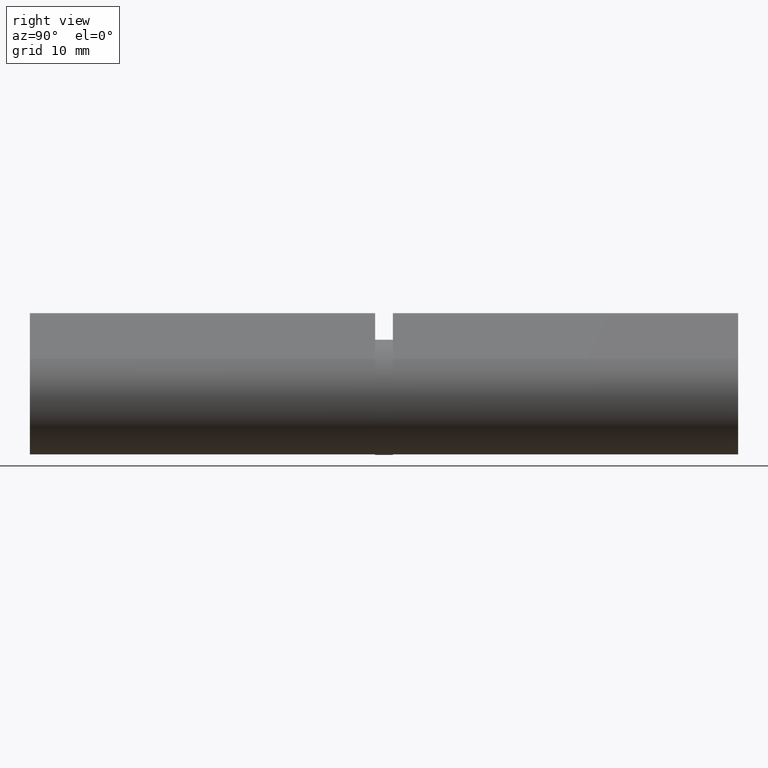
[diagram: clean part render]
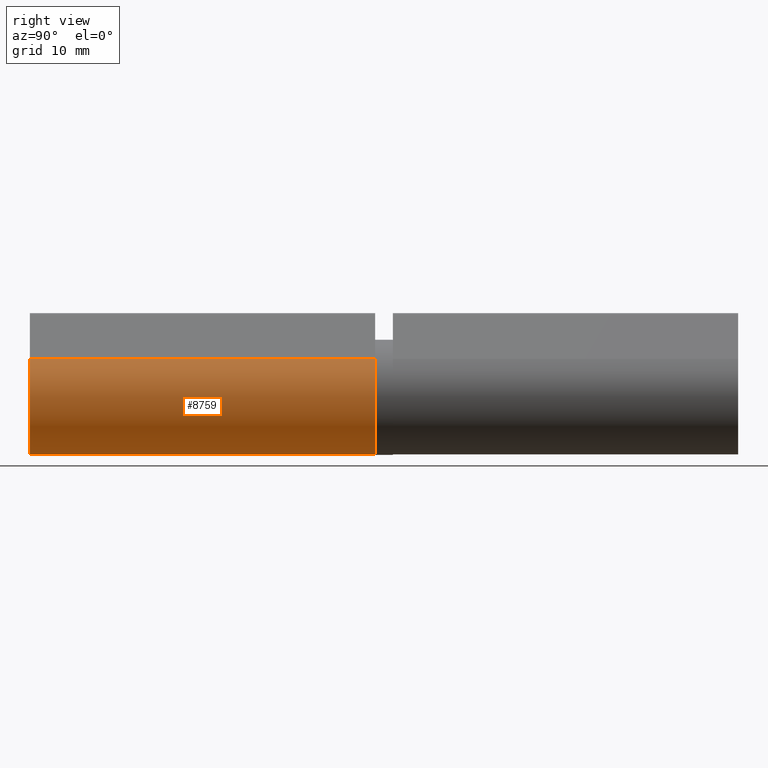
[diagram: same view with one face highlighted and labeled with its STEP entity id]
A machine part, right view. The second image highlights one B-rep face of the part: STEP entity #8759.
In plain terms, the highlighted cylindrical surface (partial cylindrical patch) has radius 6.5 mm, axis along (-0, -1, -0).
Its self-contained STEP definition (entity closure, byte-faithful):
#272 = ORIENTED_EDGE ( 'NONE', *, *, #7942, .T. ) ;
#326 = DIRECTION ( 'NONE',  ( 0.000000000000000000, 0.000000000000000000, 1.000000000000000000 ) ) ;
#709 = CIRCLE ( 'NONE', #1336, 6.499999999999999112 ) ;
#800 = ORIENTED_EDGE ( 'NONE', *, *, #13417, .F. ) ;
#1336 = AXIS2_PLACEMENT_3D ( 'NONE', #8853, #7966, #326 ) ;
#1532 = LINE ( 'NONE', #7394, #7231 ) ;
#2534 = DIRECTION ( 'NONE',  ( -0.000000000000000000, -1.000000000000000000, -0.000000000000000000 ) ) ;
#2840 = DIRECTION ( 'NONE',  ( -0.000000000000000000, -1.000000000000000000, -0.000000000000000000 ) ) ;
#2867 = VERTEX_POINT ( 'NONE', #6100 ) ;
#2939 = CARTESIAN_POINT ( 'NONE',  ( -4.844813951249543393, 19.50000000000000000, 4.333333333333332149 ) ) ;
#3790 = CARTESIAN_POINT ( 'NONE',  ( 4.844813951249543393, -19.50000000000000000, 4.333333333333332149 ) ) ;
#4330 = CARTESIAN_POINT ( 'NONE',  ( 0.000000000000000000, 19.50000000000000000, 0.000000000000000000 ) ) ;
#4489 = ORIENTED_EDGE ( 'NONE', *, *, #11706, .T. ) ;
#4950 = LINE ( 'NONE', #6786, #6460 ) ;
#4983 = VERTEX_POINT ( 'NONE', #10437 ) ;
#6100 = CARTESIAN_POINT ( 'NONE',  ( -4.844813951249543393, -19.50000000000000000, 4.333333333333332149 ) ) ;
#6147 = VERTEX_POINT ( 'NONE', #2939 ) ;
#6389 = EDGE_CURVE ( 'NONE', #6147, #2867, #1532, .T. ) ;
#6423 = DIRECTION ( 'NONE',  ( 0.000000000000000000, 0.000000000000000000, -1.000000000000000000 ) ) ;
#6460 = VECTOR ( 'NONE', #2534, 1000.000000000000000 ) ;
#6488 = DIRECTION ( 'NONE',  ( 0.000000000000000000, 0.000000000000000000, 1.000000000000000000 ) ) ;
#6572 = VERTEX_POINT ( 'NONE', #3790 ) ;
#6786 = CARTESIAN_POINT ( 'NONE',  ( 4.844813951249543393, 19.50000000000000000, 4.333333333333332149 ) ) ;
#7231 = VECTOR ( 'NONE', #2840, 1000.000000000000000 ) ;
#7394 = CARTESIAN_POINT ( 'NONE',  ( -4.844813951249543393, 19.50000000000000000, 4.333333333333332149 ) ) ;
#7942 = EDGE_CURVE ( 'NONE', #4983, #6572, #4950, .T. ) ;
#7966 = DIRECTION ( 'NONE',  ( 0.000000000000000000, 1.000000000000000000, 0.000000000000000000 ) ) ;
#8594 = DIRECTION ( 'NONE',  ( 0.000000000000000000, 1.000000000000000000, 0.000000000000000000 ) ) ;
#8759 = ADVANCED_FACE ( 'NONE', ( #8793 ), #13296, .T. ) ;
#8793 = FACE_OUTER_BOUND ( 'NONE', #13720, .T. ) ;
#8853 = CARTESIAN_POINT ( 'NONE',  ( 0.000000000000000000, -19.50000000000000000, 0.000000000000000000 ) ) ;
#8871 = AXIS2_PLACEMENT_3D ( 'NONE', #4330, #8594, #6488 ) ;
#9687 = DIRECTION ( 'NONE',  ( -0.000000000000000000, -1.000000000000000000, -0.000000000000000000 ) ) ;
#10437 = CARTESIAN_POINT ( 'NONE',  ( 4.844813951249543393, 19.50000000000000000, 4.333333333333332149 ) ) ;
#10544 = ORIENTED_EDGE ( 'NONE', *, *, #6389, .F. ) ;
#11352 = AXIS2_PLACEMENT_3D ( 'NONE', #12822, #9687, #6423 ) ;
#11706 = EDGE_CURVE ( 'NONE', #6572, #2867, #709, .T. ) ;
#12822 = CARTESIAN_POINT ( 'NONE',  ( 0.000000000000000000, 19.50000000000000000, 0.000000000000000000 ) ) ;
#13296 = CYLINDRICAL_SURFACE ( 'NONE', #11352, 6.499999999999999112 ) ;
#13395 = CIRCLE ( 'NONE', #8871, 6.499999999999999112 ) ;
#13417 = EDGE_CURVE ( 'NONE', #4983, #6147, #13395, .T. ) ;
#13720 = EDGE_LOOP ( 'NONE', ( #4489, #10544, #800, #272 ) ) ;